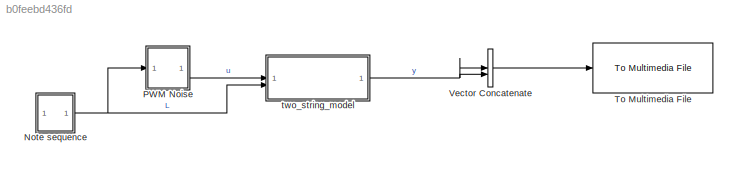
MODEL slx_b0feebd436fd
KIND model
CONFIG AbsTol = auto
CONFIG EnableMultiTasking = off
CONFIG FixedStep = auto
CONFIG MaxStep = auto
CONFIG MinStep = auto
CONFIG RelTol = 1e-3
CONFIG SampleTimeConstraint = Unconstrained
CONFIG SolverName = VariableStepAuto
CONFIG StartTime = 0.0
CONFIG StopTime = 10.0
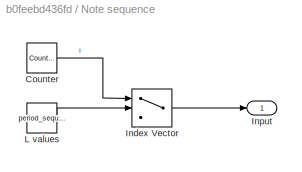
BLOCK [SubSystem] Note sequence
BLOCK [Reference] Note sequence/Counter  REF=simulink/Sources/Counter
Free-Running
  SourceBlock = simulink/Sources/Counter\nFree-Running
  SourceType = Counter Free-Running
BLOCK [MultiPortSwitch] Note sequence/Index Vector
  DataPortOrder = Zero-based contiguous
  InputSameDT = off
  Inputs = 1
  SaturateOnIntegerOverflow = off
  zeroidx = on
BLOCK [Outport] Note sequence/Input
BLOCK [Constant] Note sequence/L values
  Value = period_sequence
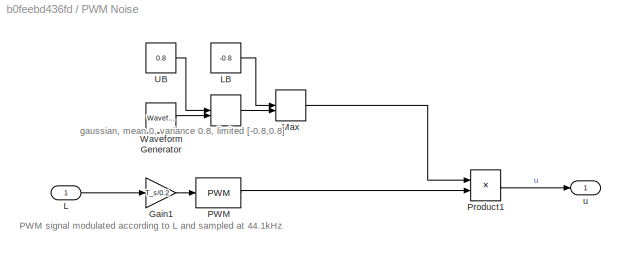
BLOCK [SubSystem] PWM Noise
BLOCK [Gain] PWM Noise/Gain1
  Gain = T_s/0.2
BLOCK [Inport] PWM Noise/L
BLOCK [Constant] PWM Noise/LB
  Value = -0.8
BLOCK [MinMax] PWM Noise/Max
  Function = max
  Inputs = 2
BLOCK [MinMax] PWM Noise/Min
  Inputs = 2
BLOCK [Reference] PWM Noise/PWM  REF=simulink/Discontinuities/PWM
  DisableCoverage = on
  SourceBlock = simulink/Discontinuities/PWM
  SourceType = PWM
BLOCK [Product] PWM Noise/Product1
BLOCK [Constant] PWM Noise/UB
  Value = 0.8
BLOCK [Reference] PWM Noise/Waveform Generator  REF=simulink/Sources/Waveform
Generator
  SourceBlock = simulink/Sources/Waveform\nGenerator
  SourceType = WaveformGenerator
BLOCK [Outport] PWM Noise/u
BLOCK [Reference] To Multimedia File  REF=dspvision/To Multimedia File
  LibrarySourceBlock = dspsnks4/To Multimedia File
  SourceBlock = dspvision/To Multimedia File
  SourceType = To Multimedia File
BLOCK [Concatenate] Vector Concatenate
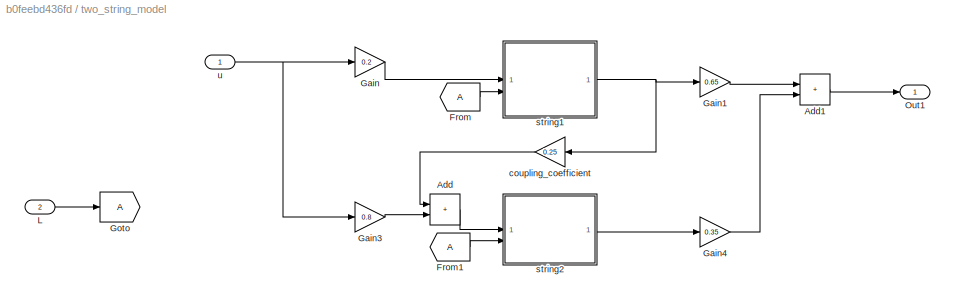
BLOCK [SubSystem] two_string_model
BLOCK [Sum] two_string_model/Add
  IconShape = rectangular
BLOCK [Sum] two_string_model/Add1
  IconShape = rectangular
BLOCK [From] two_string_model/From
BLOCK [From] two_string_model/From1
BLOCK [Gain] two_string_model/Gain
  Gain = 0.2
BLOCK [Gain] two_string_model/Gain1
  Gain = 0.65
BLOCK [Gain] two_string_model/Gain3
  Gain = 0.8
BLOCK [Gain] two_string_model/Gain4
  Gain = 0.35
BLOCK [Goto] two_string_model/Goto
BLOCK [Inport] two_string_model/L
  Port = 2
BLOCK [Outport] two_string_model/Out1
BLOCK [Gain] two_string_model/coupling_coefficient
  Gain = 0.25
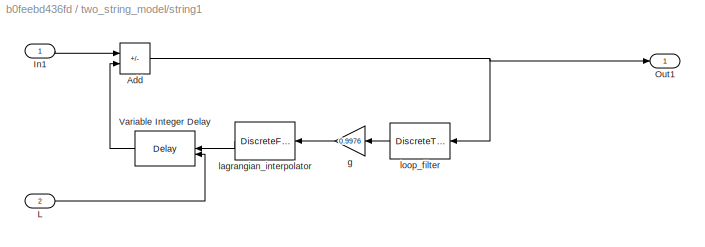
BLOCK [SubSystem] two_string_model/string1
BLOCK [Sum] two_string_model/string1/Add
  IconShape = rectangular
  Inputs = +-
BLOCK [Inport] two_string_model/string1/In1
BLOCK [Inport] two_string_model/string1/L
  Port = 2
BLOCK [Outport] two_string_model/string1/Out1
BLOCK [Delay] two_string_model/string1/Variable Integer Delay
  DelayLengthSource = Input port
  DelayLengthUpperLimit = 256
  InputPortMap = u0,p1
  PreventDirectFeedthrough = on
  UseCircularBuffer = on
BLOCK [Gain] two_string_model/string1/g
  Gain = 0.9976
BLOCK [DiscreteFir] two_string_model/string1/lagrangian_interpolator
  Coefficients = frac_delay_inter
  InputPortMap = u0
  OutputPortMap = o0
BLOCK [DiscreteTransferFcn] two_string_model/string1/loop_filter
  Denominator = [1 -0.1490]
  InputPortMap = u0
  Numerator = [1-0.1490]
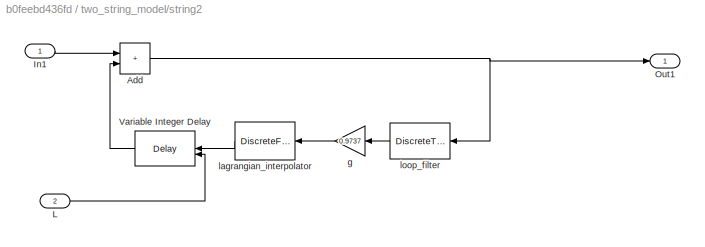
BLOCK [SubSystem] two_string_model/string2
BLOCK [Sum] two_string_model/string2/Add
  IconShape = rectangular
BLOCK [Inport] two_string_model/string2/In1
BLOCK [Inport] two_string_model/string2/L
  Port = 2
BLOCK [Outport] two_string_model/string2/Out1
BLOCK [Delay] two_string_model/string2/Variable Integer Delay
  DelayLengthSource = Input port
  DelayLengthUpperLimit = 256
  InputPortMap = u0,p1
  PreventDirectFeedthrough = on
  UseCircularBuffer = on
BLOCK [Gain] two_string_model/string2/g
  Gain = 0.9737
BLOCK [DiscreteFir] two_string_model/string2/lagrangian_interpolator
  Coefficients = frac_delay_inter
  InputPortMap = u0
  OutputPortMap = o0
BLOCK [DiscreteTransferFcn] two_string_model/string2/loop_filter
  Denominator = [1 -0.0878]
  InputPortMap = u0
  Numerator = [1-0.0878]
BLOCK [Inport] two_string_model/u
ANNOTATION PWM Noise: PWM signal modulated according to L and sampled at 44.1kHz
ANNOTATION PWM Noise: gaussian, mean 0, variance 0.8, limited [-0.8,0.8]
LINE Note sequence/Counter:1 -> Note sequence/Index Vector:1
LINE Note sequence/Index Vector:1 -> Note sequence/Input:1
LINE Note sequence/L values:1 -> Note sequence/Index Vector:2
NET Note sequence:1 -> PWM Noise:1, two_string_model:2
LINE PWM Noise/Gain1:1 -> PWM Noise/PWM:1
LINE PWM Noise/L:1 -> PWM Noise/Gain1:1
LINE PWM Noise/LB:1 -> PWM Noise/Max:1
LINE PWM Noise/Max:1 -> PWM Noise/Product1:1
LINE PWM Noise/Min:1 -> PWM Noise/Max:2
LINE PWM Noise/PWM:1 -> PWM Noise/Product1:2
LINE PWM Noise/Product1:1 -> PWM Noise/u:1
LINE PWM Noise/UB:1 -> PWM Noise/Min:1
LINE PWM Noise/Waveform Generator:1 -> PWM Noise/Min:2
LINE PWM Noise:1 -> two_string_model:1
LINE Vector Concatenate:1 -> To Multimedia File:1
LINE two_string_model/Add1:1 -> two_string_model/Out1:1
LINE two_string_model/Add:1 -> two_string_model/string2:1
LINE two_string_model/From1:1 -> two_string_model/string2:2
LINE two_string_model/From:1 -> two_string_model/string1:2
LINE two_string_model/Gain1:1 -> two_string_model/Add1:1
LINE two_string_model/Gain3:1 -> two_string_model/Add:2
LINE two_string_model/Gain4:1 -> two_string_model/Add1:2
LINE two_string_model/Gain:1 -> two_string_model/string1:1
LINE two_string_model/L:1 -> two_string_model/Goto:1
LINE two_string_model/coupling_coefficient:1 -> two_string_model/Add:1
NET two_string_model/string1/Add:1 -> two_string_model/string1/Out1:1, two_string_model/string1/loop_filter:1
LINE two_string_model/string1/In1:1 -> two_string_model/string1/Add:1
LINE two_string_model/string1/L:1 -> two_string_model/string1/Variable Integer Delay:2
LINE two_string_model/string1/Variable Integer Delay:1 -> two_string_model/string1/Add:2
LINE two_string_model/string1/g:1 -> two_string_model/string1/lagrangian_interpolator:1
LINE two_string_model/string1/lagrangian_interpolator:1 -> two_string_model/string1/Variable Integer Delay:1
LINE two_string_model/string1/loop_filter:1 -> two_string_model/string1/g:1
NET two_string_model/string1:1 -> two_string_model/Gain1:1, two_string_model/coupling_coefficient:1
NET two_string_model/string2/Add:1 -> two_string_model/string2/Out1:1, two_string_model/string2/loop_filter:1
LINE two_string_model/string2/In1:1 -> two_string_model/string2/Add:1
LINE two_string_model/string2/L:1 -> two_string_model/string2/Variable Integer Delay:2
LINE two_string_model/string2/Variable Integer Delay:1 -> two_string_model/string2/Add:2
LINE two_string_model/string2/g:1 -> two_string_model/string2/lagrangian_interpolator:1
LINE two_string_model/string2/lagrangian_interpolator:1 -> two_string_model/string2/Variable Integer Delay:1
LINE two_string_model/string2/loop_filter:1 -> two_string_model/string2/g:1
LINE two_string_model/string2:1 -> two_string_model/Gain4:1
NET two_string_model/u:1 -> two_string_model/Gain3:1, two_string_model/Gain:1
NET two_string_model:1 -> Vector Concatenate:1, Vector Concatenate:2
note: NET lines group one-source signal fan-out (src -> all destinations, sorted); 1:1 wires keep LINE
